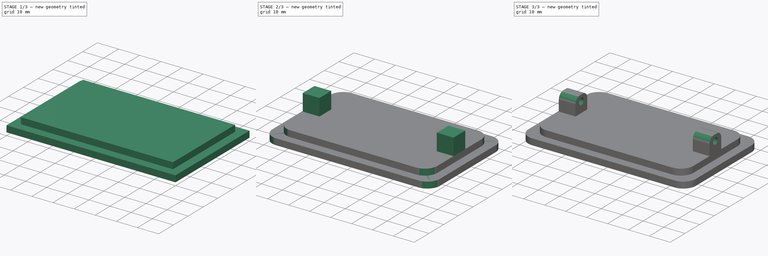
[diagram: build sequence overview — one tinted view per stage of 3, left to right]
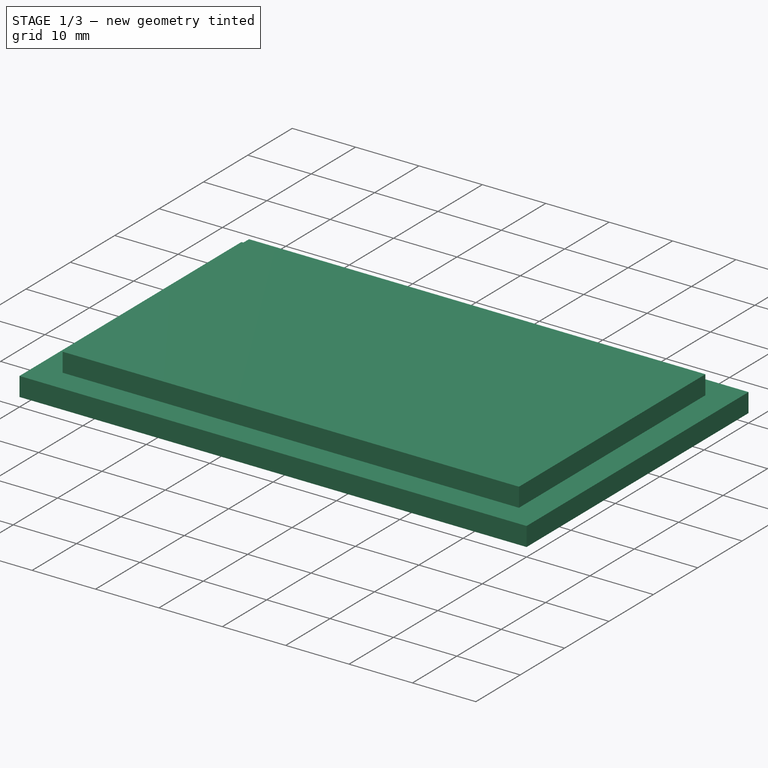
[diagram: stage 1 of 3 — iso view after this stage's code; geometry added in this stage tinted green]
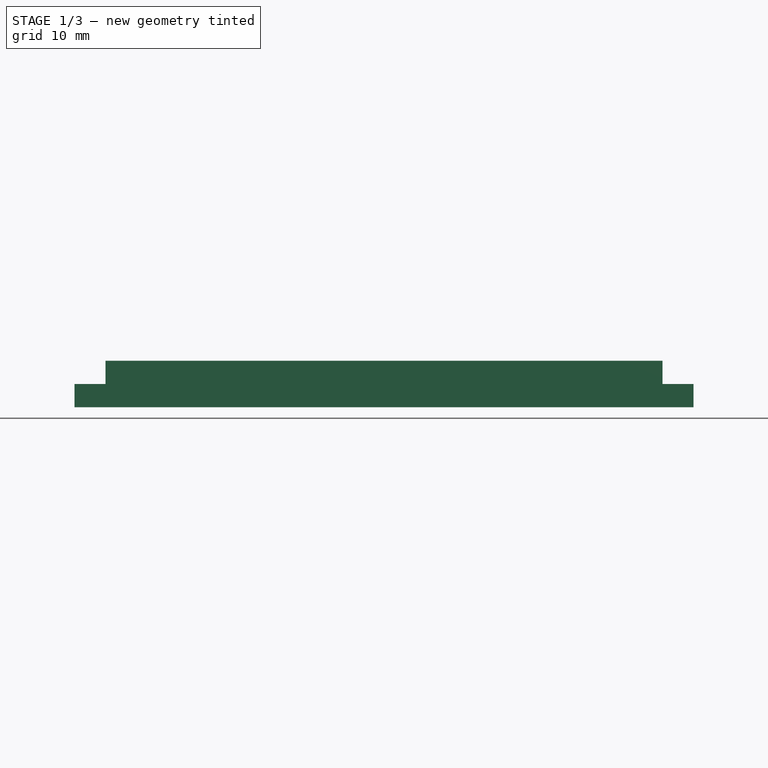
[diagram: stage 1 of 3 — front view after this stage's code; geometry added in this stage tinted green]
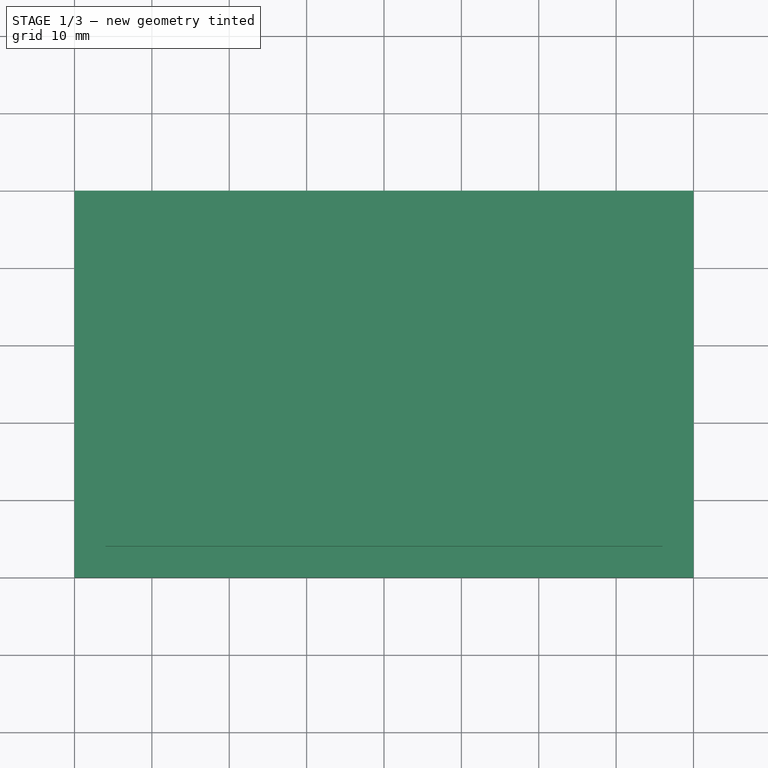
[diagram: stage 1 of 3 — top view after this stage's code; geometry added in this stage tinted green]
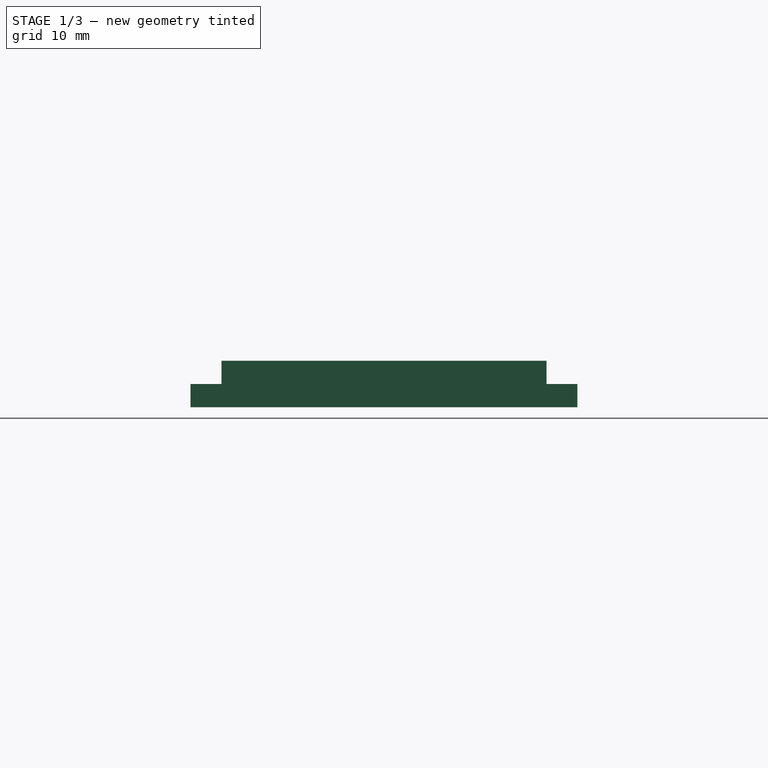
[diagram: stage 1 of 3 — right view after this stage's code; geometry added in this stage tinted green]
FCSTD DOCUMENT  (FreeCAD 0.19R24291 (Git))
Label: ValveMount2
License: All rights reserved
LicenseURL: http://en.wikipedia.org/wiki/All_rights_reserved
objects: Sketcher::SketchObject×4, PartDesign::Pad×3, PartDesign::Fillet×2, PartDesign::Pocket×1, PartDesign::Body×1
note: 17 computed .brp shape members not serialized (recipe doc carries the construction recipe); baked Part::Feature solids carry a one-line shape summary decoded from their .brp

FEATURE [Sketcher::SketchObject] Sketch
  FullyConstrained = true
  MapMode = 5
  Support = -> [XY_Plane]
  sketch-geometry (4):
    g0: LineSegment StartX=0 StartY=0 StartZ=0 EndX=-80 EndY=0 EndZ=0
    g1: LineSegment StartX=-80 StartY=0 StartZ=0 EndX=-80 EndY=50 EndZ=0
    g2: LineSegment StartX=-80 StartY=50 StartZ=0 EndX=0 EndY=50 EndZ=0
    g3: LineSegment StartX=0 StartY=50 StartZ=0 EndX=0 EndY=0 EndZ=0
  constraints (11):
    c: Coincident(g0,g1)
    c: Coincident(g1,g2)
    c: Coincident(g2,g3)
    c: Coincident(g3,g0)
    c: Horizontal(g0)
    c: Horizontal(g2)
    c: Vertical(g1)
    c: Vertical(g3)
    c: Coincident(g0,g-1)
    c: DistanceX(g0,g0) = 80
    c: DistanceY(g1,g1) = 50
FEATURE [PartDesign::Pad] Pad
  Direction = (1,1,1)
  Length = 3
  Length2 = 100
  Profile = -> Sketch
  Type = 0
FEATURE [Sketcher::SketchObject] Sketch001
  ExternalGeometry = -> [Pad]
  FullyConstrained = true
  MapMode = 5
  Placement = pos=(0,0,3) rot=(0,0,1;0rad)
  Support = -> [Pad]
  sketch-geometry (4):
    g0: LineSegment StartX=-76 StartY=46 StartZ=0 EndX=-4 EndY=46 EndZ=0
    g1: LineSegment StartX=-4 StartY=46 StartZ=0 EndX=-4 EndY=4 EndZ=0
    g2: LineSegment StartX=-4 StartY=4 StartZ=0 EndX=-76 EndY=4 EndZ=0
    g3: LineSegment StartX=-76 StartY=4 StartZ=0 EndX=-76 EndY=46 EndZ=0
  constraints (12):
    c: Coincident(g0,g1)
    c: Coincident(g1,g2)
    c: Coincident(g2,g3)
    c: Coincident(g3,g0)
    c: Horizontal(g0)
    c: Horizontal(g2)
    c: Vertical(g1)
    c: Vertical(g3)
    c: Distance(g0,g-3) = 4
    c: Distance(g2,g-4) = 4
    c: DistanceY(g-1,g2) = 4
    c: DistanceX(g-2,g1) = -4
FEATURE [PartDesign::Pad] Pad001
  BaseFeature = -> Pad
  Direction = (1,1,1)
  Length = 3
  Length2 = 100
  Profile = -> Sketch001
  Type = 0
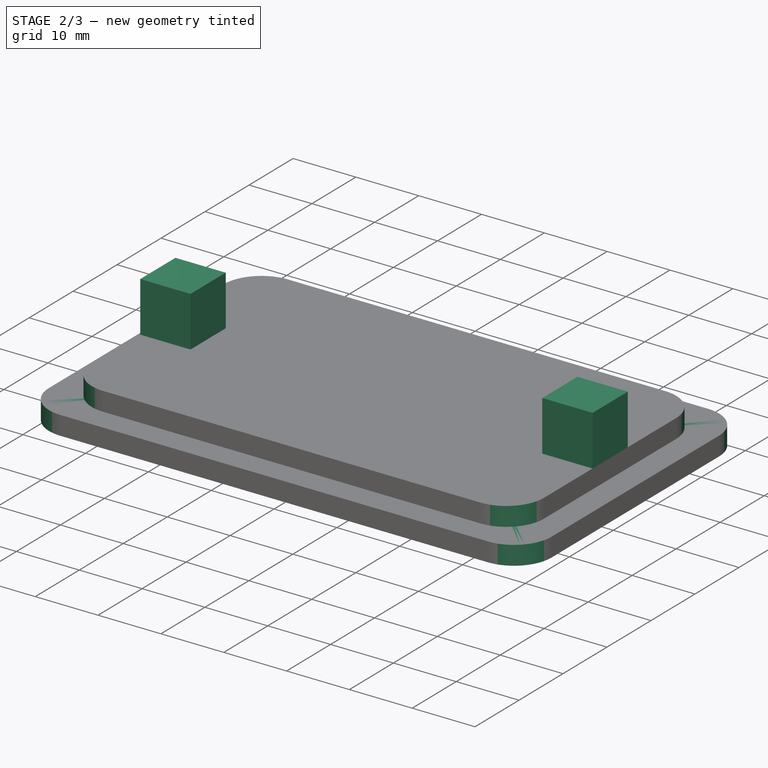
[diagram: stage 2 of 3 — iso view after this stage's code; geometry added in this stage tinted green]
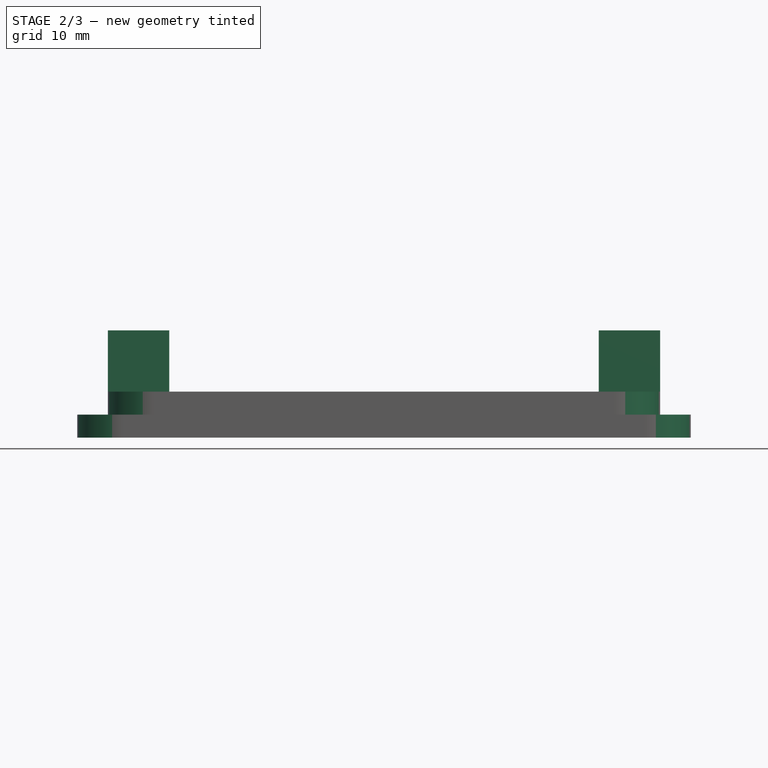
[diagram: stage 2 of 3 — front view after this stage's code; geometry added in this stage tinted green]
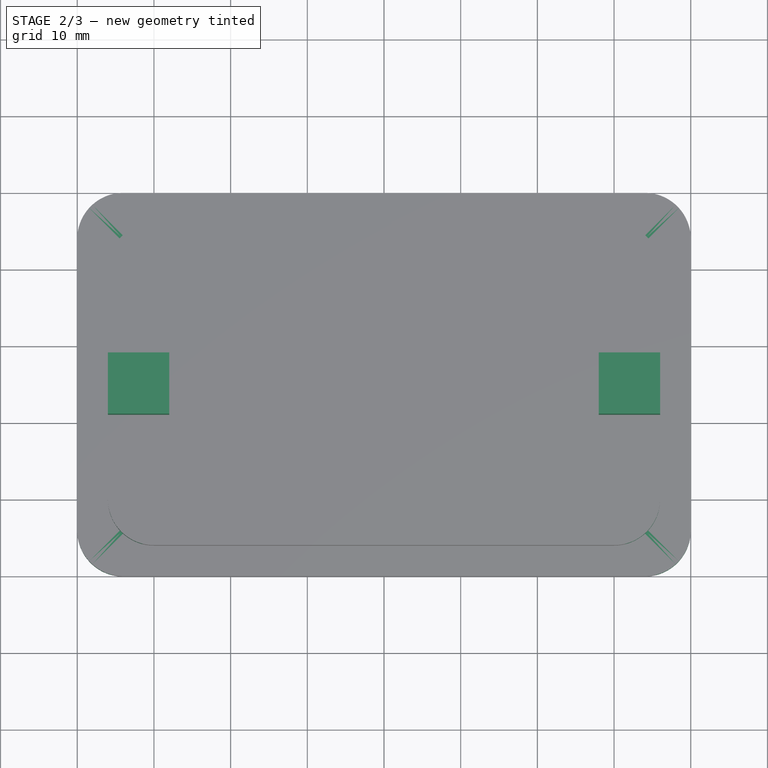
[diagram: stage 2 of 3 — top view after this stage's code; geometry added in this stage tinted green]
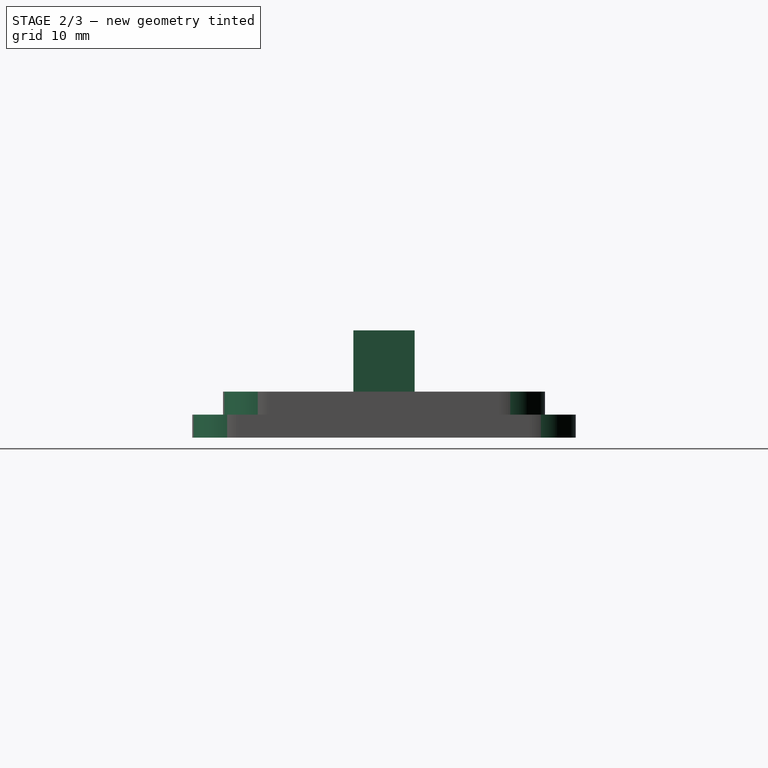
[diagram: stage 2 of 3 — right view after this stage's code; geometry added in this stage tinted green]
FEATURE [PartDesign::Fillet] Fillet
  Base = -> Pad001 [Edge2,Edge22,Edge20,Edge1,Edge5,Edge18,Edge17,Edge8]
  BaseFeature = -> Pad001
  Radius = 6
  SupportTransform = false
FEATURE [Sketcher::SketchObject] Sketch002
  ExternalGeometry = -> [Fillet]
  FullyConstrained = true
  MapMode = 5
  Placement = pos=(0,0,6) rot=(0,0,1;0rad)
  Support = -> [Fillet]
  sketch-geometry (12):
    g0: LineSegment StartX=-76 StartY=29 StartZ=0 EndX=-68 EndY=29 EndZ=0
    g1: LineSegment StartX=-68 StartY=29 StartZ=0 EndX=-68 EndY=21 EndZ=0
    g2: LineSegment StartX=-68 StartY=21 StartZ=0 EndX=-76 EndY=21 EndZ=0
    g3: LineSegment StartX=-76 StartY=21 StartZ=0 EndX=-76 EndY=29 EndZ=0
    g4: LineSegment StartX=-4 StartY=29 StartZ=0 EndX=-12 EndY=29 EndZ=0
    g5: LineSegment StartX=-12 StartY=29 StartZ=0 EndX=-12 EndY=21 EndZ=0
    g6: LineSegment StartX=-12 StartY=21 StartZ=0 EndX=-4 EndY=21 EndZ=0
    g7: LineSegment StartX=-4 StartY=21 StartZ=0 EndX=-4 EndY=29 EndZ=0
    g8: LineSegment StartX=-76 StartY=40 StartZ=0 EndX=-76 EndY=29 EndZ=0
    g9: LineSegment StartX=-76 StartY=10 StartZ=0 EndX=-76 EndY=21 EndZ=0
    g10: LineSegment StartX=-4 StartY=10 StartZ=0 EndX=-4 EndY=21 EndZ=0
    g11: LineSegment StartX=-4 StartY=40 StartZ=0 EndX=-4 EndY=29 EndZ=0
  constraints (32):
    c: Coincident(g0,g1)
    c: Coincident(g1,g2)
    c: Coincident(g2,g3)
    c: Coincident(g3,g0)
    c: Horizontal(g0)
    c: Horizontal(g2)
    c: Vertical(g1)
    c: Vertical(g3)
    c: PointOnObject(g0,g-4)
    c: Coincident(g4,g5)
    c: Coincident(g5,g6)
    c: Coincident(g6,g7)
    c: Coincident(g7,g4)
    c: Horizontal(g4)
    c: Horizontal(g6)
    c: Vertical(g5)
    c: Vertical(g7)
    c: PointOnObject(g4,g-3)
    c: Equal(g4,g0)
    c: DistanceX(g0,g0) = 8
    c: Equal(g1,g5)
    c: DistanceY(g1,g1) = 8
    c: Coincident(g8,g-4)
    c: Coincident(g8,g0)
    c: Coincident(g9,g-4)
    c: Coincident(g9,g2)
    c: Coincident(g10,g-3)
    c: Coincident(g10,g6)
    c: Coincident(g11,g-3)
    c: Coincident(g11,g4)
    c: Equal(g9,g8)
    c: Equal(g8,g11)
FEATURE [PartDesign::Pad] Pad002
  BaseFeature = -> Fillet
  Direction = (1,1,1)
  Length = 8
  Length2 = 100
  Profile = -> Sketch002
  Type = 0
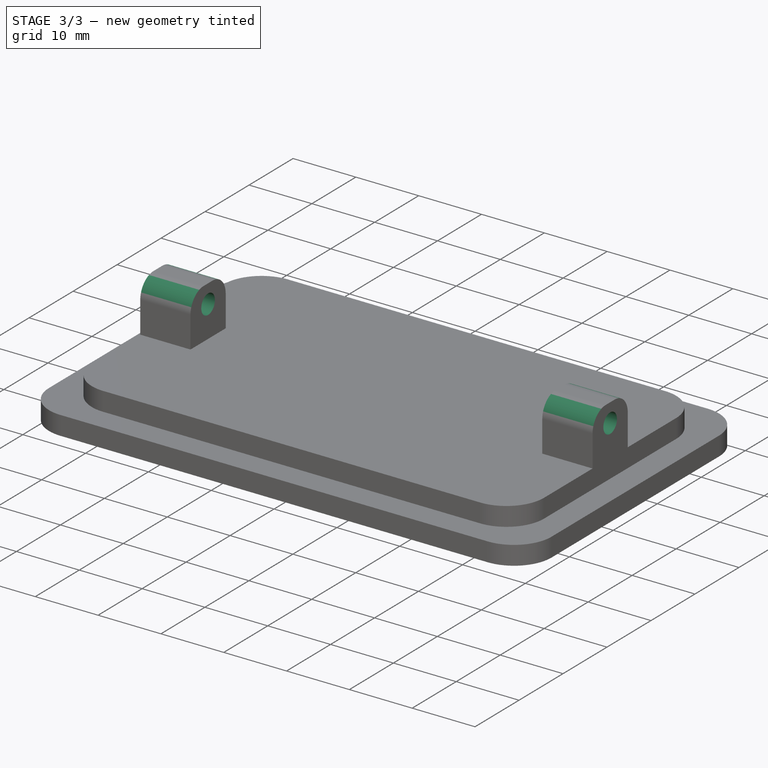
[diagram: stage 3 of 3 — iso view after this stage's code; geometry added in this stage tinted green]
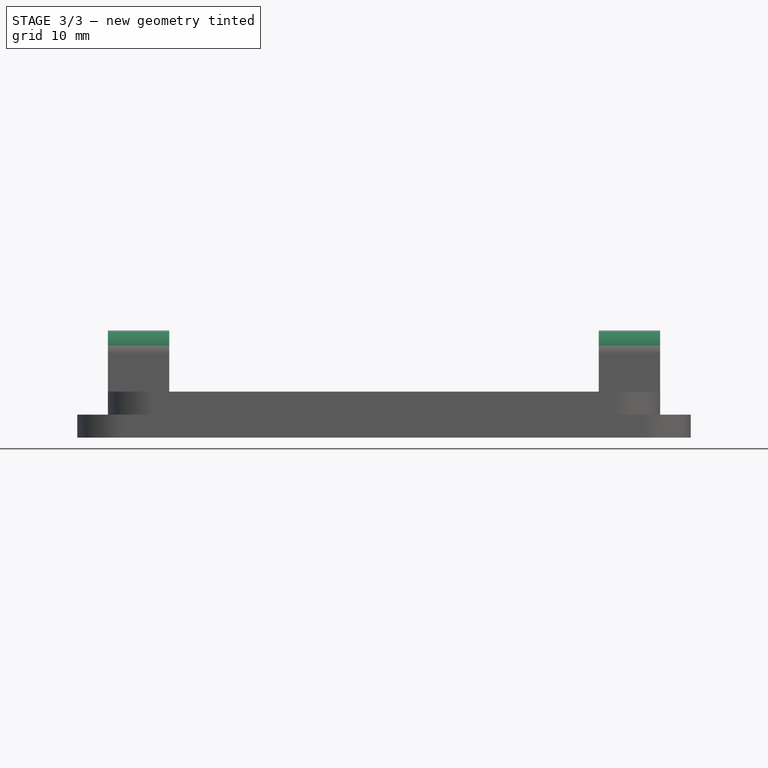
[diagram: stage 3 of 3 — front view after this stage's code; geometry added in this stage tinted green]
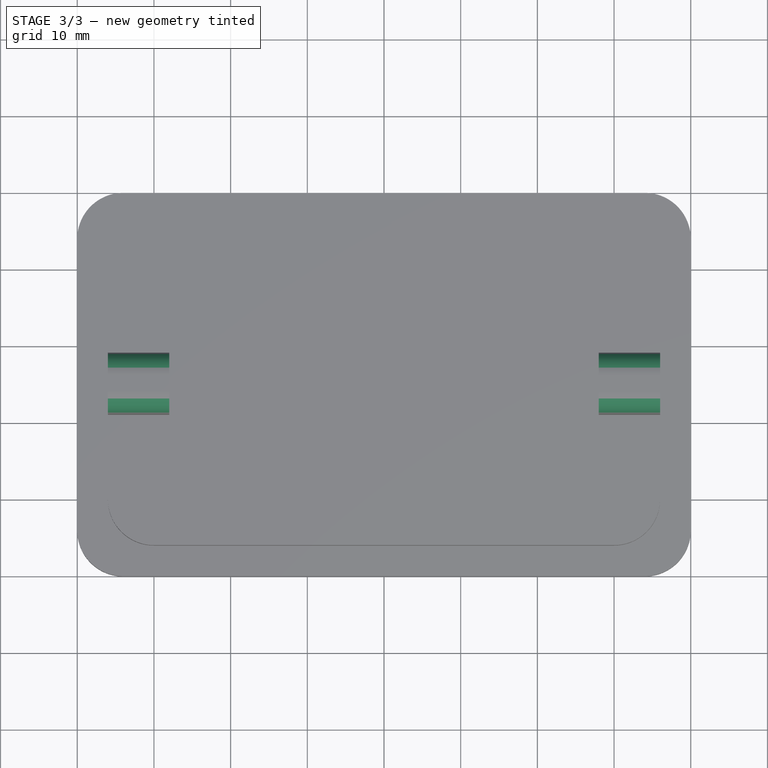
[diagram: stage 3 of 3 — top view after this stage's code; geometry added in this stage tinted green]
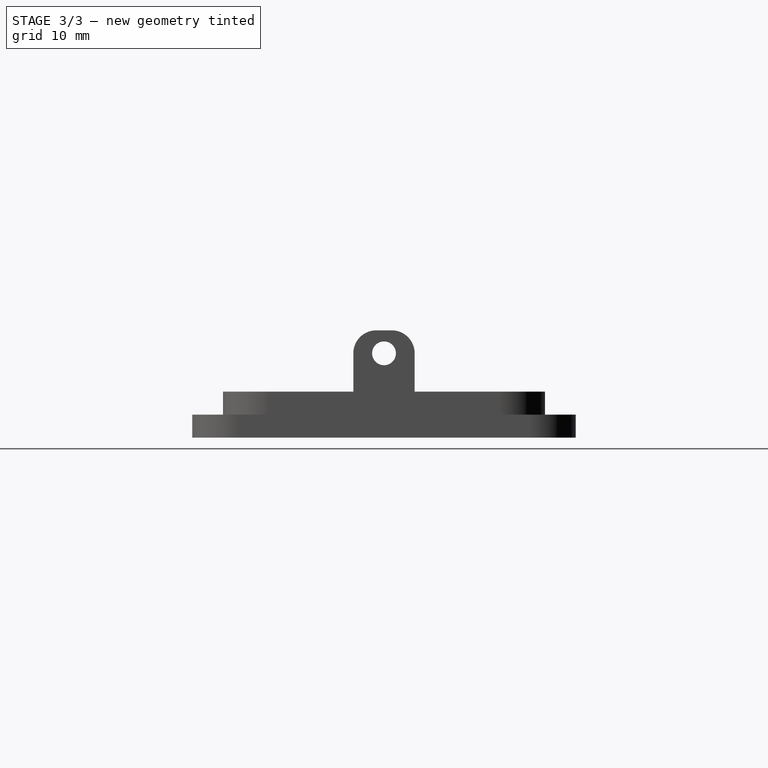
[diagram: stage 3 of 3 — right view after this stage's code; geometry added in this stage tinted green]
FEATURE [PartDesign::Fillet] Fillet001
  Base = -> Pad002 [Edge71,Edge74,Edge69,Edge66]
  BaseFeature = -> Pad002
  Radius = 3
  SupportTransform = false
FEATURE [Sketcher::SketchObject] Sketch003
  ExternalGeometry = -> [Fillet001]
  FullyConstrained = true
  MapMode = 5
  Placement = pos=(-4,0,0) rot=(0.57735,0.57735,0.57735;2.0944rad)
  Support = -> [Fillet001]
  sketch-geometry (3):
    g0: LineSegment StartX=21 StartY=6 StartZ=0 EndX=25 EndY=11 EndZ=0
    g1: LineSegment StartX=25 StartY=11 StartZ=0 EndX=29 EndY=6 EndZ=0
    g2: Circle CenterX=25 CenterY=11 CenterZ=0 NormalX=0 NormalY=0 NormalZ=1 AngleXU=0 Radius=1.55
  constraints (7):
    c: Coincident(g0,g-3)
    c: Coincident(g1,g0)
    c: Coincident(g1,g-3)
    c: Coincident(g2,g0)
    c: Radius(g2) = 1.55
    c: Equal(g1,g0)
    c: Distance(g2,g-3) = 5
FEATURE [PartDesign::Pocket] Pocket
  BaseFeature = -> Fillet001
  Length = 5
  Length2 = 100
  Profile = -> Sketch003
  Type = 1
FEATURE [PartDesign::Body] Body
  Group = -> [Sketch,Pad,Sketch001,Pad001,Fillet,Sketch002,Pad002,Fillet001,Sketch003,Pocket]
  Origin = -> Origin
  Tip = -> Pocket
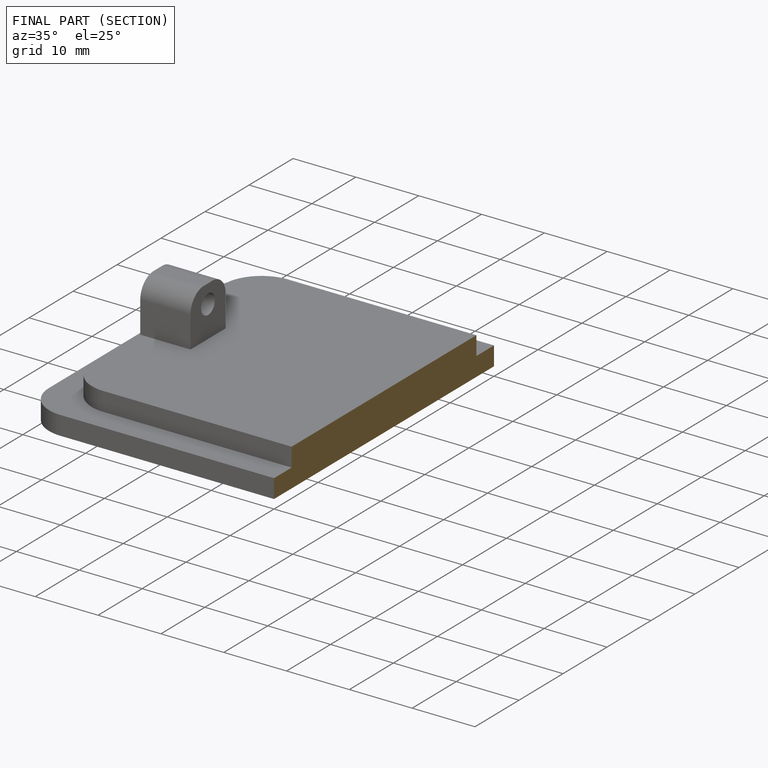
[diagram: finished part — half-section view (interior)]
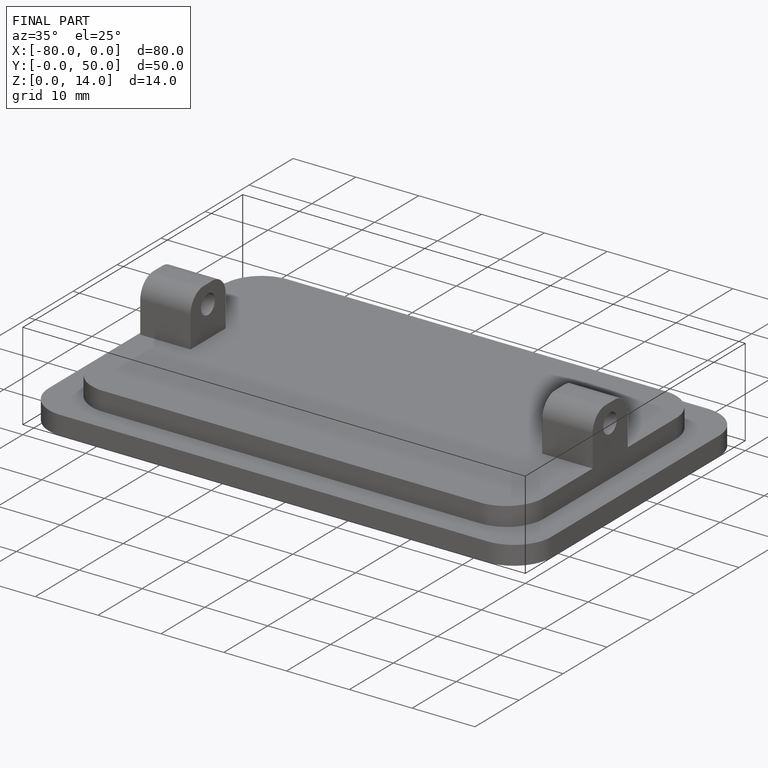
[diagram: finished part — iso view with bounding-box wireframe]
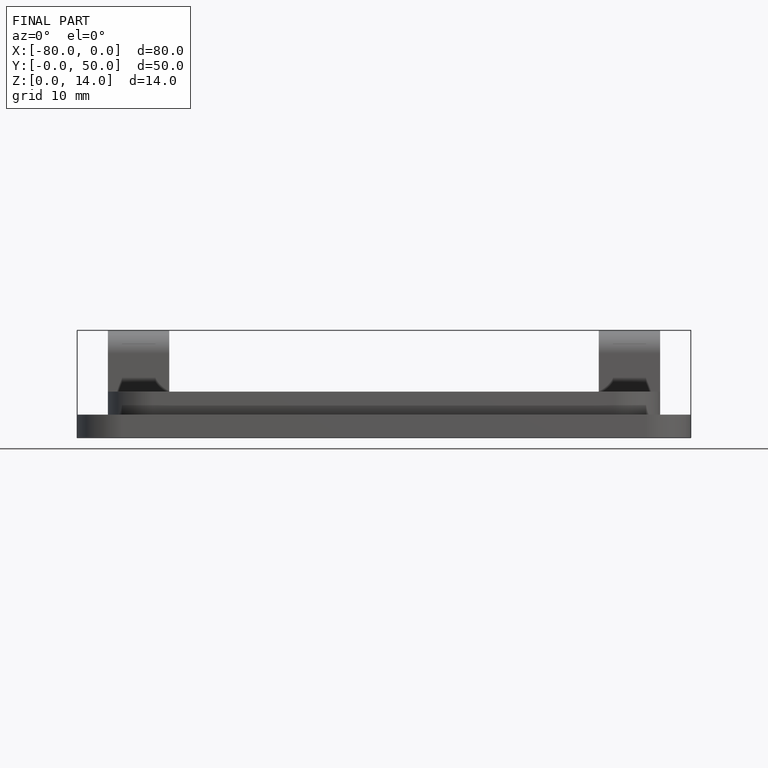
[diagram: finished part — front view with bounding-box wireframe]
